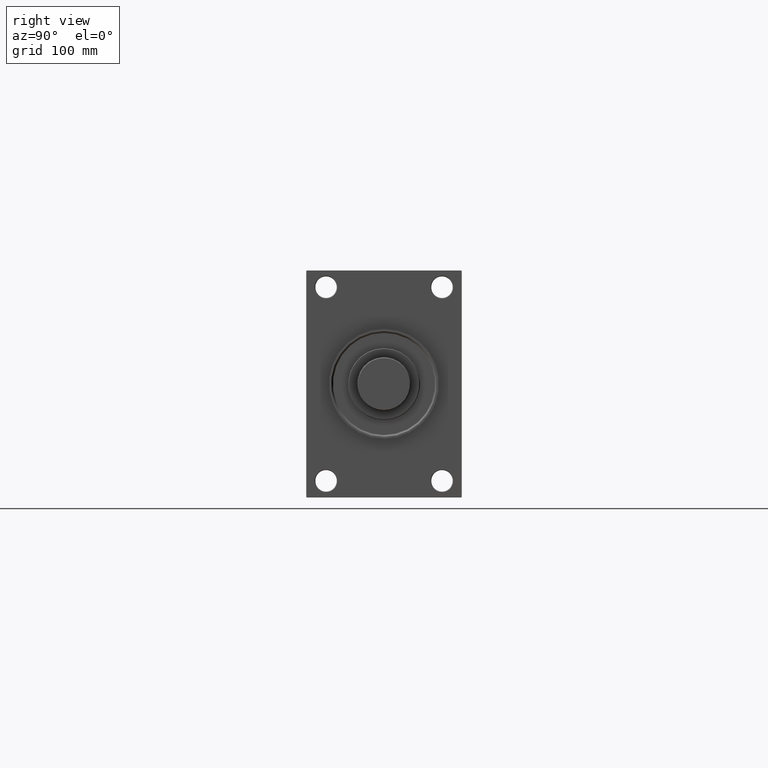
[diagram: clean part render]
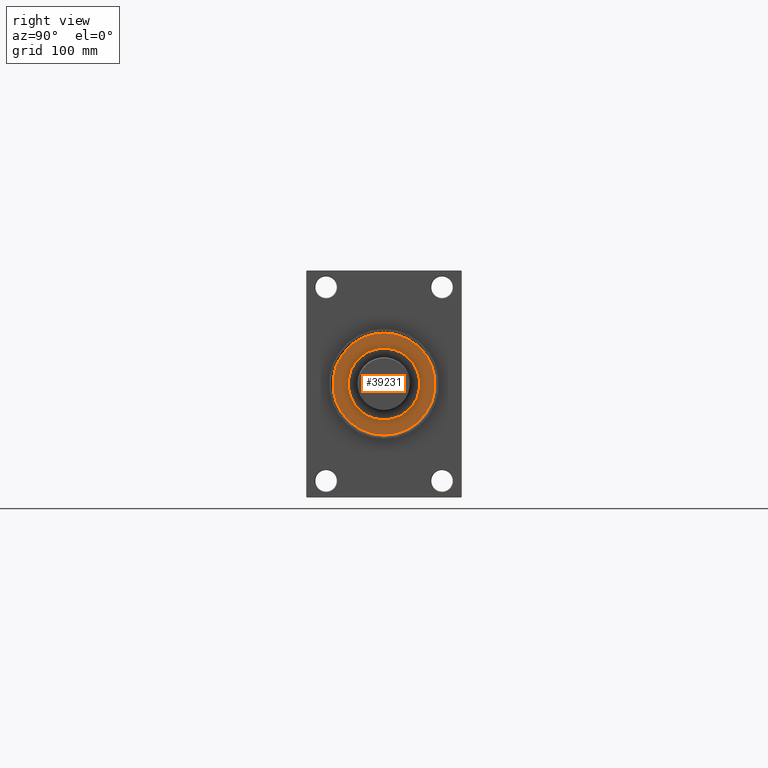
[diagram: same view with one face highlighted and labeled with its STEP entity id]
A machine part, right view. The second image highlights one B-rep face of the part: STEP entity #39231.
In plain terms, the highlighted planar face has unit normal (1, -0, -0).
Its self-contained STEP definition (entity closure, byte-faithful):
#1096 = CARTESIAN_POINT ( 'NONE',  ( 42.25000000000000000, 0.000000000000000000, 43.25999999999999801 ) ) ;
#1643 = CARTESIAN_POINT ( 'NONE',  ( -42.25000000000000000, 1.530808498934193050E-16, 43.25999999999999801 ) ) ;
#1860 = DIRECTION ( 'NONE',  ( 0.000000000000000000, 0.000000000000000000, 1.000000000000000000 ) ) ;
#2469 = DIRECTION ( 'NONE',  ( 1.000000000000000000, 0.000000000000000000, 0.000000000000000000 ) ) ;
#2637 = EDGE_LOOP ( 'NONE', ( #42913, #34303 ) ) ;
#2875 = EDGE_LOOP ( 'NONE', ( #37835, #23019 ) ) ;
#3355 = FACE_OUTER_BOUND ( 'NONE', #26129, .T. ) ;
#3459 = CIRCLE ( 'NONE', #8971, 30.00000000000000000 ) ;
#4085 = PLANE ( 'NONE',  #10384 ) ;
#4865 = EDGE_LOOP ( 'NONE', ( #15657, #28292 ) ) ;
#5346 = AXIS2_PLACEMENT_3D ( 'NONE', #9382, #31366, #43080 ) ;
#6081 = CIRCLE ( 'NONE', #41968, 42.75000000000000000 ) ;
#6356 = DIRECTION ( 'NONE',  ( 1.000000000000000000, 0.000000000000000000, 0.000000000000000000 ) ) ;
#6851 = CARTESIAN_POINT ( 'NONE',  ( 39.75000000000000000, 1.530808498934193050E-16, 43.25999999999999801 ) ) ;
#7322 = CARTESIAN_POINT ( 'NONE',  ( 0.000000000000000000, 0.000000000000000000, 43.25999999999999801 ) ) ;
#7448 = EDGE_CURVE ( 'NONE', #28666, #22479, #3459, .T. ) ;
#8798 = EDGE_CURVE ( 'NONE', #20826, #15834, #39402, .T. ) ;
#8971 = AXIS2_PLACEMENT_3D ( 'NONE', #7322, #10506, #6356 ) ;
#9351 = CARTESIAN_POINT ( 'NONE',  ( -41.00000000000000000, 0.000000000000000000, 43.25999999999999801 ) ) ;
#9365 = DIRECTION ( 'NONE',  ( -0.000000000000000000, -0.000000000000000000, 1.000000000000000000 ) ) ;
#9382 = CARTESIAN_POINT ( 'NONE',  ( 0.000000000000000000, 0.000000000000000000, 43.25999999999999801 ) ) ;
#9551 = DIRECTION ( 'NONE',  ( 1.000000000000000000, 0.000000000000000000, 0.000000000000000000 ) ) ;
#10350 = CARTESIAN_POINT ( 'NONE',  ( 30.00000000000000000, 3.673940397442059178E-15, 43.25999999999999801 ) ) ;
#10384 = AXIS2_PLACEMENT_3D ( 'NONE', #22903, #37326, #41229 ) ;
#10506 = DIRECTION ( 'NONE',  ( 0.000000000000000000, 0.000000000000000000, 1.000000000000000000 ) ) ;
#12217 = AXIS2_PLACEMENT_3D ( 'NONE', #35341, #1860, #47930 ) ;
#12327 = EDGE_CURVE ( 'NONE', #36457, #13156, #41873, .T. ) ;
#12533 = CIRCLE ( 'NONE', #47586, 1.250000000000001110 ) ;
#13156 = VERTEX_POINT ( 'NONE', #21204 ) ;
#15240 = AXIS2_PLACEMENT_3D ( 'NONE', #23393, #46120, #34886 ) ;
#15657 = ORIENTED_EDGE ( 'NONE', *, *, #25288, .F. ) ;
#15834 = VERTEX_POINT ( 'NONE', #32422 ) ;
#16882 = CARTESIAN_POINT ( 'NONE',  ( 41.00000000000000000, 0.000000000000000000, 43.25999999999999801 ) ) ;
#17750 = CIRCLE ( 'NONE', #30132, 1.250000000000001110 ) ;
#18738 = DIRECTION ( 'NONE',  ( 1.000000000000000000, 0.000000000000000000, 0.000000000000000000 ) ) ;
#19424 = EDGE_CURVE ( 'NONE', #13156, #36457, #6081, .T. ) ;
#20314 = EDGE_CURVE ( 'NONE', #15834, #20826, #17750, .T. ) ;
#20826 = VERTEX_POINT ( 'NONE', #1643 ) ;
#21204 = CARTESIAN_POINT ( 'NONE',  ( 42.75000000000000000, 5.235365066354935472E-15, 43.25999999999999801 ) ) ;
#22422 = FACE_BOUND ( 'NONE', #2875, .T. ) ;
#22479 = VERTEX_POINT ( 'NONE', #44669 ) ;
#22491 = AXIS2_PLACEMENT_3D ( 'NONE', #16882, #32712, #9551 ) ;
#22903 = CARTESIAN_POINT ( 'NONE',  ( 0.000000000000000000, 0.000000000000000000, 43.25999999999999801 ) ) ;
#23019 = ORIENTED_EDGE ( 'NONE', *, *, #7448, .F. ) ;
#23393 = CARTESIAN_POINT ( 'NONE',  ( -41.00000000000000000, 0.000000000000000000, 43.25999999999999801 ) ) ;
#24709 = DIRECTION ( 'NONE',  ( -0.000000000000000000, -0.000000000000000000, 1.000000000000000000 ) ) ;
#24859 = CIRCLE ( 'NONE', #5346, 30.00000000000000000 ) ;
#25288 = EDGE_CURVE ( 'NONE', #28514, #30918, #35793, .T. ) ;
#26129 = EDGE_LOOP ( 'NONE', ( #30685, #47800 ) ) ;
#26155 = EDGE_CURVE ( 'NONE', #22479, #28666, #24859, .T. ) ;
#26809 = FACE_BOUND ( 'NONE', #4865, .T. ) ;
#28292 = ORIENTED_EDGE ( 'NONE', *, *, #29742, .F. ) ;
#28514 = VERTEX_POINT ( 'NONE', #1096 ) ;
#28666 = VERTEX_POINT ( 'NONE', #10350 ) ;
#29721 = CARTESIAN_POINT ( 'NONE',  ( 0.000000000000000000, 0.000000000000000000, 43.25999999999999801 ) ) ;
#29742 = EDGE_CURVE ( 'NONE', #30918, #28514, #12533, .T. ) ;
#30132 = AXIS2_PLACEMENT_3D ( 'NONE', #9351, #24709, #2469 ) ;
#30685 = ORIENTED_EDGE ( 'NONE', *, *, #12327, .T. ) ;
#30918 = VERTEX_POINT ( 'NONE', #6851 ) ;
#31366 = DIRECTION ( 'NONE',  ( 0.000000000000000000, 0.000000000000000000, 1.000000000000000000 ) ) ;
#32422 = CARTESIAN_POINT ( 'NONE',  ( -39.75000000000000000, 0.000000000000000000, 43.25999999999999801 ) ) ;
#32712 = DIRECTION ( 'NONE',  ( -0.000000000000000000, -0.000000000000000000, 1.000000000000000000 ) ) ;
#34303 = ORIENTED_EDGE ( 'NONE', *, *, #8798, .F. ) ;
#34886 = DIRECTION ( 'NONE',  ( 1.000000000000000000, 0.000000000000000000, 0.000000000000000000 ) ) ;
#35299 = CARTESIAN_POINT ( 'NONE',  ( -42.75000000000000000, 0.000000000000000000, 43.25999999999999801 ) ) ;
#35341 = CARTESIAN_POINT ( 'NONE',  ( 0.000000000000000000, 0.000000000000000000, 43.25999999999999801 ) ) ;
#35495 = DIRECTION ( 'NONE',  ( 1.000000000000000000, 0.000000000000000000, 0.000000000000000000 ) ) ;
#35793 = CIRCLE ( 'NONE', #22491, 1.250000000000001110 ) ;
#36457 = VERTEX_POINT ( 'NONE', #35299 ) ;
#37326 = DIRECTION ( 'NONE',  ( 0.000000000000000000, 0.000000000000000000, 1.000000000000000000 ) ) ;
#37835 = ORIENTED_EDGE ( 'NONE', *, *, #26155, .F. ) ;
#38619 = FACE_BOUND ( 'NONE', #2637, .T. ) ;
#39231 = ADVANCED_FACE ( 'NONE', ( #38619, #26809, #22422, #3355 ), #4085, .T. ) ;
#39402 = CIRCLE ( 'NONE', #15240, 1.250000000000001110 ) ;
#41229 = DIRECTION ( 'NONE',  ( 1.000000000000000000, 0.000000000000000000, -0.000000000000000000 ) ) ;
#41873 = CIRCLE ( 'NONE', #12217, 42.75000000000000000 ) ;
#41968 = AXIS2_PLACEMENT_3D ( 'NONE', #29721, #45356, #18738 ) ;
#42817 = CARTESIAN_POINT ( 'NONE',  ( 41.00000000000000000, 0.000000000000000000, 43.25999999999999801 ) ) ;
#42913 = ORIENTED_EDGE ( 'NONE', *, *, #20314, .F. ) ;
#43080 = DIRECTION ( 'NONE',  ( 1.000000000000000000, 0.000000000000000000, 0.000000000000000000 ) ) ;
#44669 = CARTESIAN_POINT ( 'NONE',  ( -30.00000000000000000, 0.000000000000000000, 43.25999999999999801 ) ) ;
#45356 = DIRECTION ( 'NONE',  ( 0.000000000000000000, 0.000000000000000000, 1.000000000000000000 ) ) ;
#46120 = DIRECTION ( 'NONE',  ( -0.000000000000000000, -0.000000000000000000, 1.000000000000000000 ) ) ;
#47586 = AXIS2_PLACEMENT_3D ( 'NONE', #42817, #9365, #35495 ) ;
#47800 = ORIENTED_EDGE ( 'NONE', *, *, #19424, .T. ) ;
#47930 = DIRECTION ( 'NONE',  ( 1.000000000000000000, 0.000000000000000000, 0.000000000000000000 ) ) ;